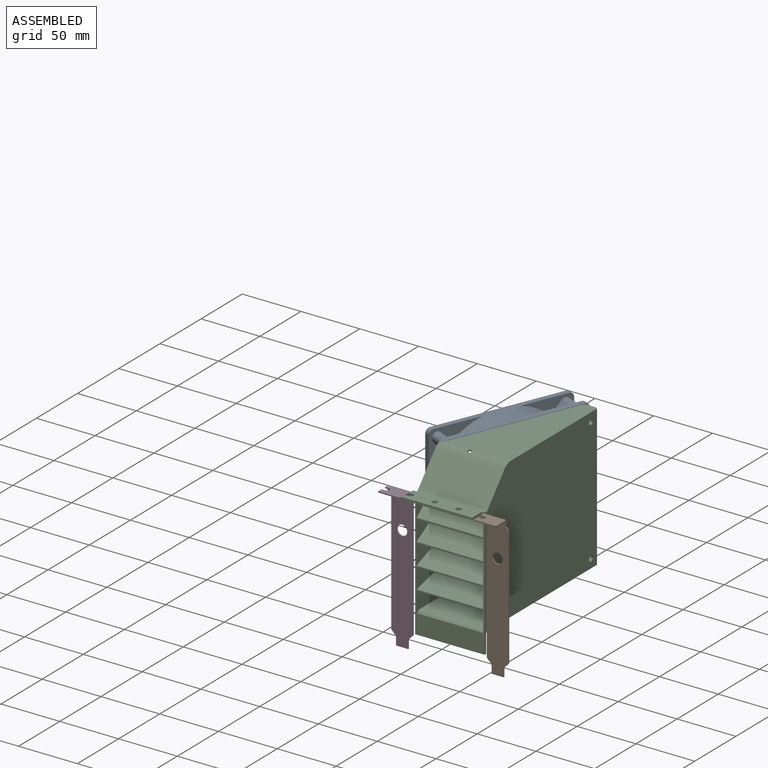
[diagram: assembled view]
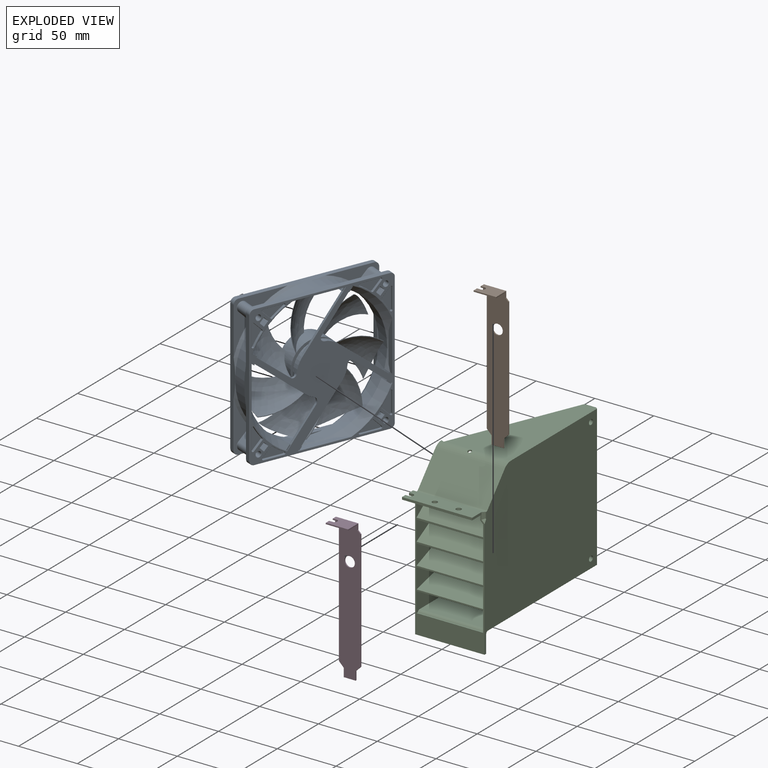
[diagram: exploded view]
GUIDED TOUR — MATED ASSEMBLY (Onshape document 17d0eddd383a870faa927adf, AutoMate assembly 17d0eddd383a870faa927adf_020eab806a0623238c3f0a8d_71ed5372d5021d2027545d51_default)

This assembly has 4 components, labeled P0..P3 below (a component is one placed occurrence of a part; the same part can appear more than once), held together by 7 mates. A mate is a constraint between two components; its type names the relative motion it leaves free:
  FASTENED — locks the two components together rigidly (no relative motion),
  PLANAR — leaves sliding in the plane through the listed point (normal = the listed direction) and rotation about that normal free.
Axis/direction vectors are unit vectors and 'through' points are millimeter coordinates, both in the assembly's world frame.

MATES
  1. FASTENED "Fastened 1": P2 <-> P0, direction (-0.923, 0.386, 0.000) through (-53.42, -31.87, -50.99) mm
  2. PLANAR "Planar 5": P1 <-> P2, direction (0.000, 0.000, -1.000) through (9.03, -75.43, 31.51) mm
  3. PLANAR "Planar 4": P2 <-> P1, direction (0.000, -1.000, 0.000) through (-29.53, -69.65, -58.94) mm
  4. PLANAR "Planar 1": P3 <-> P2, direction (0.000, -1.000, 0.000) through (-70.29, -69.65, -27.29) mm
  5. PLANAR "Planar 2": P3 <-> P2, direction (0.000, 0.000, -1.000) through (-72.24, -75.43, 31.51) mm
  6. PLANAR "Planar 3": P2 <-> P3, direction (-1.000, 0.000, 0.000) through (-59.05, -52.90, -5.53) mm
  7. PLANAR "Planar 6": P2 <-> P1, direction (1.000, 0.000, 0.000) through (0.00, 0.00, 0.00) mm

ASSEMBLY ORDER
  1. P2 — the base component [order verified]
  2. P0 [order verified]
  3. P3 [order verified]
  4. P1 [order verified]
Order-tag legend:
  [order verified] — this step's position reverses a verified removal order: the component was checked to insert without passing through the ones already placed.

Of the 4 components, 2 carry the full construction recipe — the FeatureScript program that regenerates the part's solid from scratch; the rest are supplied as boundary geometry only.
Each toured component is shown spotlighted twice — in the assembled view, then in the exploded view, where a leader line traces a displaced component back to its assembled socket (saturated green if recipe-attached, orange if geometry-only; every other component desaturated gray) — followed by its recipe or geometry summary and the mates that hold it.
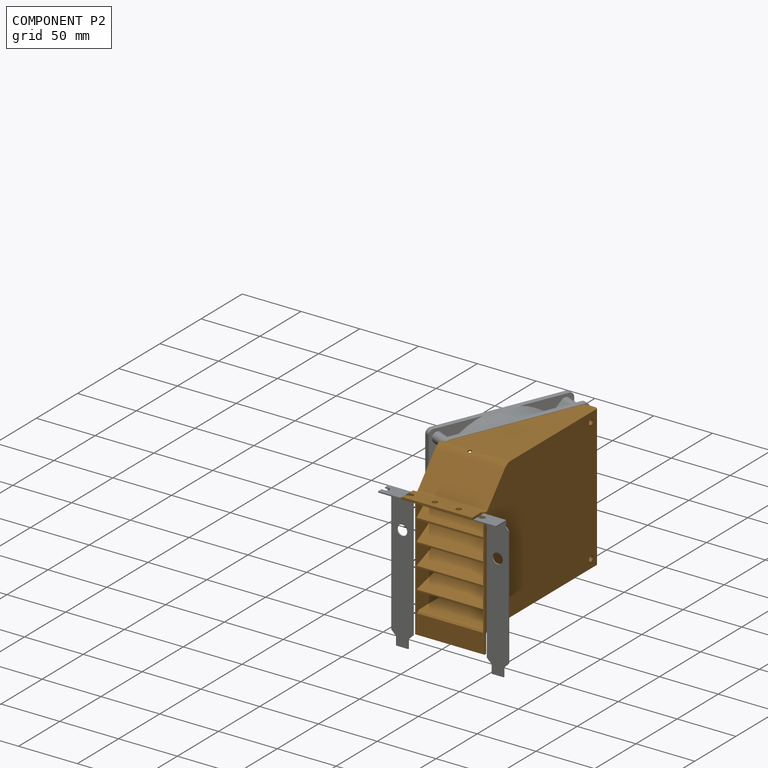
[diagram: component P2 — assembled]
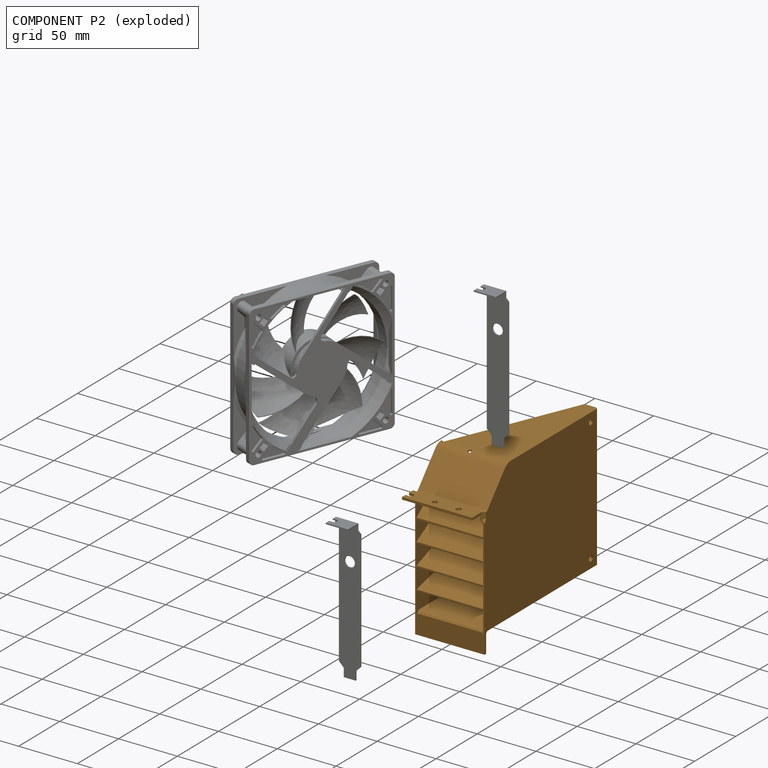
[diagram: component P2 — exploded]
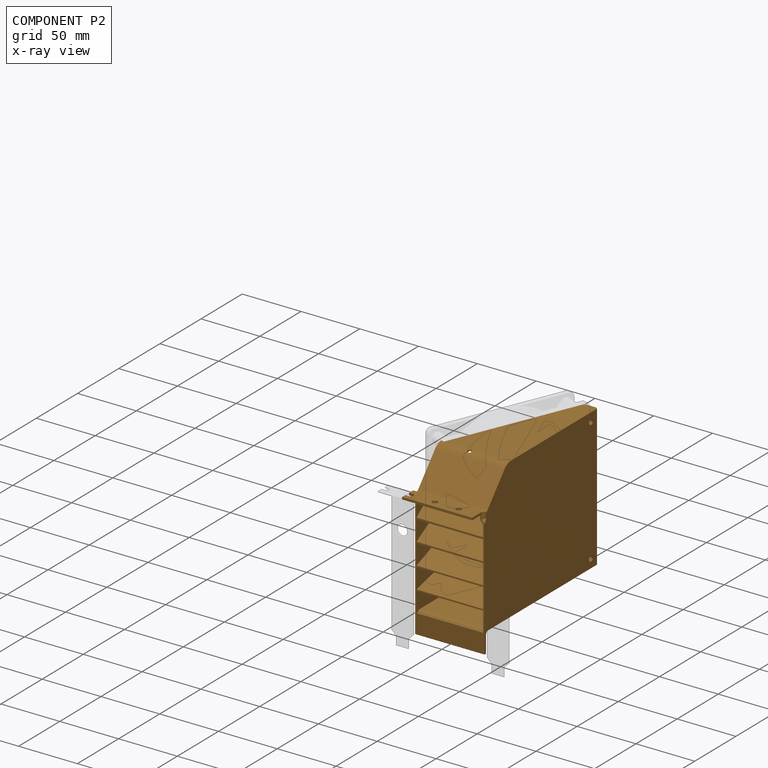
[diagram: component P2 — x-ray view]
COMPONENT P2 — geometry summary (no construction recipe available for this part):
  bounding box: 153.3 x 137.3 x 64.6 mm
  B-rep topology: 1 solid, 134 faces, 790 edges
  volume: 53734 mm^3 (4% of its bounding box)
Held by: FASTENED mate "Fastened 1" to P0; PLANAR mate "Planar 5" to P1; PLANAR mate "Planar 4" to P1; PLANAR mate "Planar 1" to P3; PLANAR mate "Planar 2" to P3; PLANAR mate "Planar 3" to P3; PLANAR mate "Planar 6" to P1.
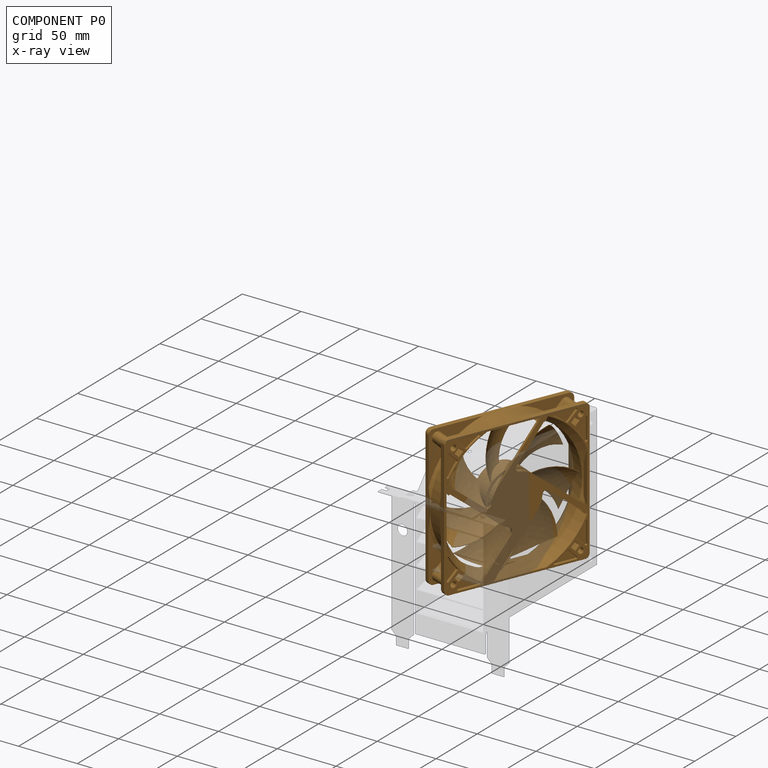
[diagram: component P0 — x-ray view]
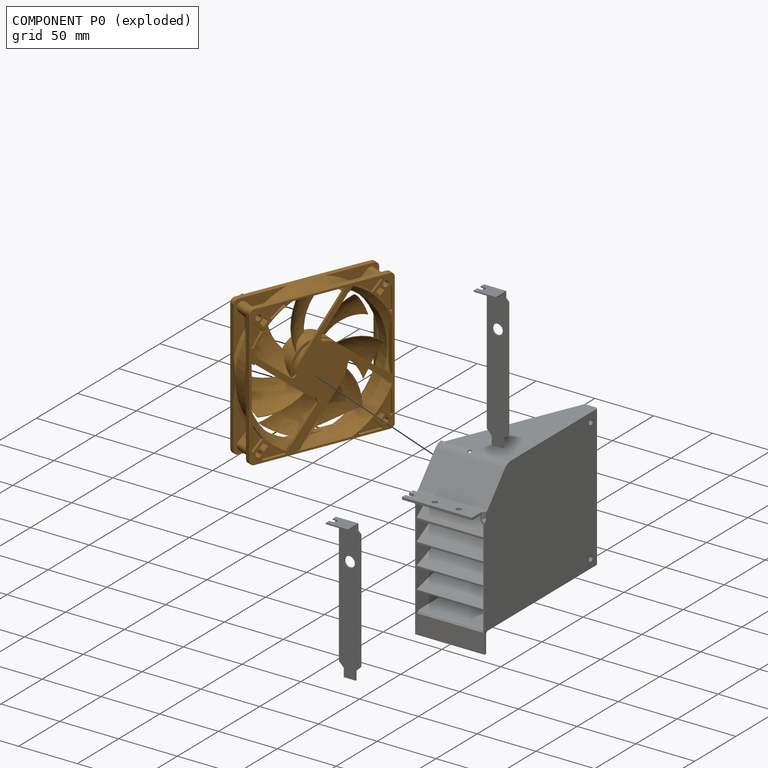
[diagram: component P0 — exploded]
COMPONENT P0 — geometry summary (no construction recipe available for this part):
  bounding box: 130.9 x 130.9 x 25.3 mm
  B-rep topology: 1 solid, 689 faces, 3374 edges
  volume: 77877 mm^3 (18% of its bounding box)
Held by: FASTENED mate "Fastened 1" to P2.
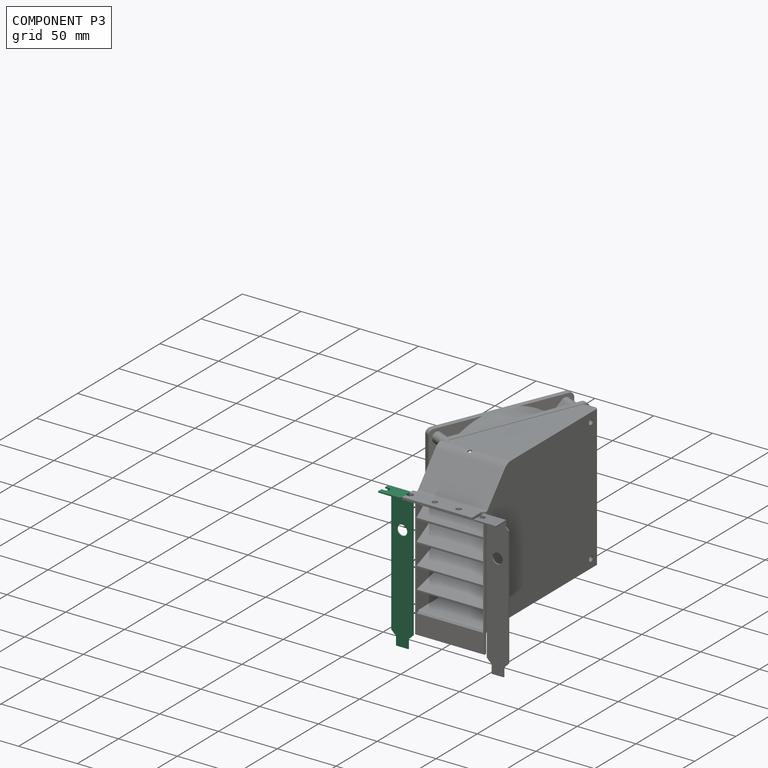
[diagram: component P3 — assembled]
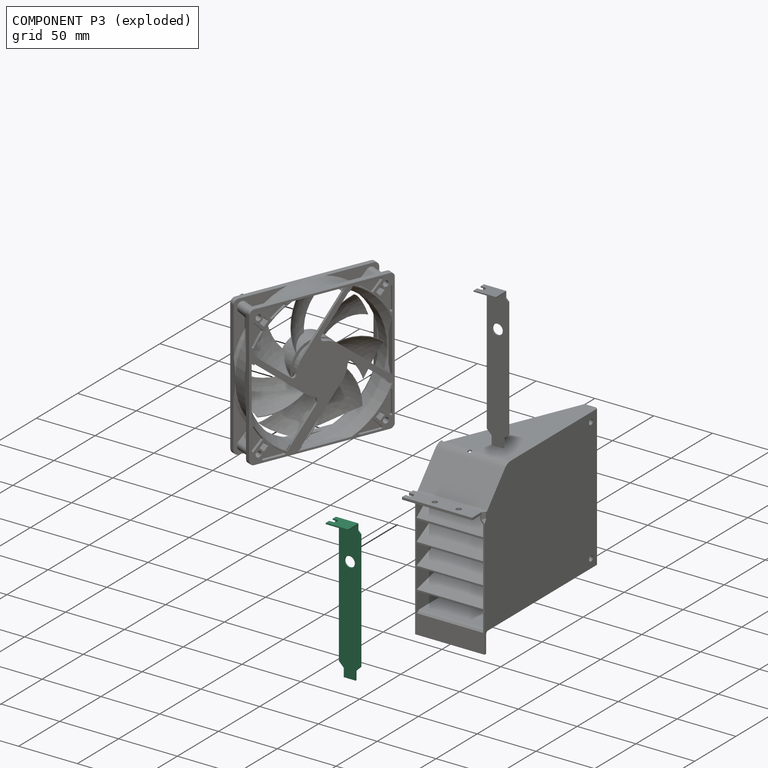
[diagram: component P3 — exploded]
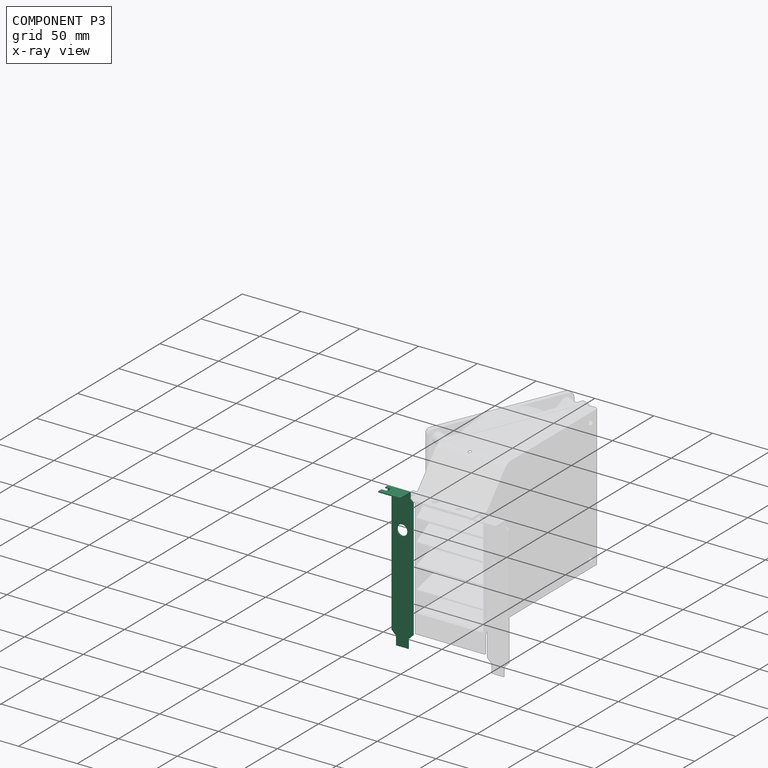
[diagram: component P3 — x-ray view]
COMPONENT P3 — same part as P1 (CADFS 00989363); its construction recipe is shown at P1.
Held by: PLANAR mate "Planar 1" to P2; PLANAR mate "Planar 2" to P2; PLANAR mate "Planar 3" to P2.
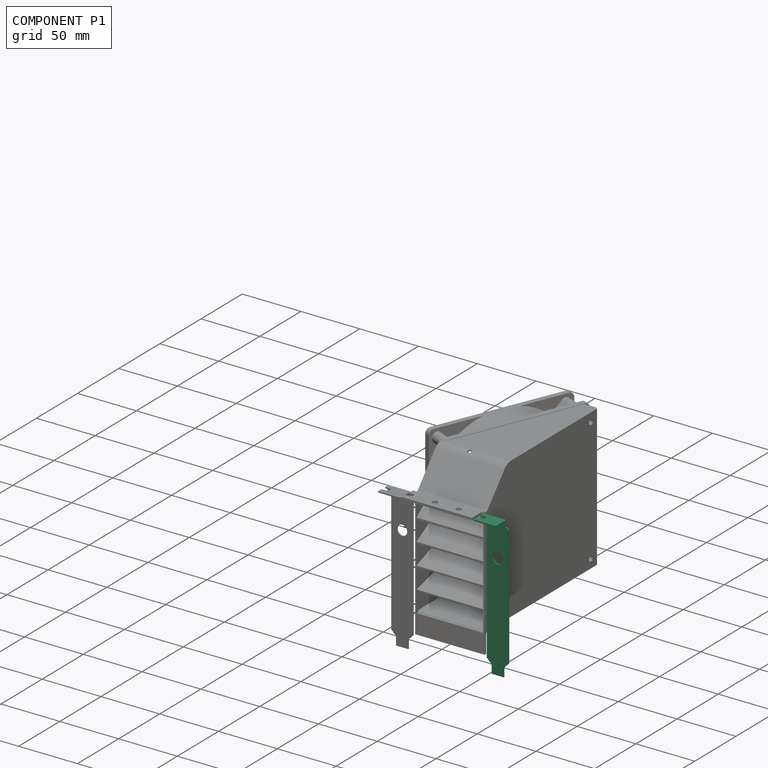
[diagram: component P1 — assembled]
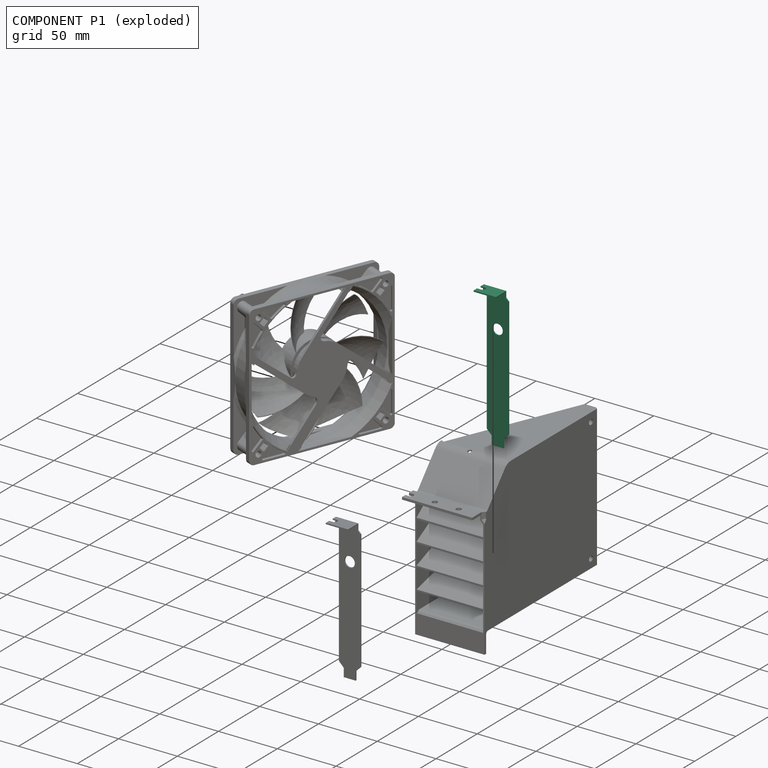
[diagram: component P1 — exploded]
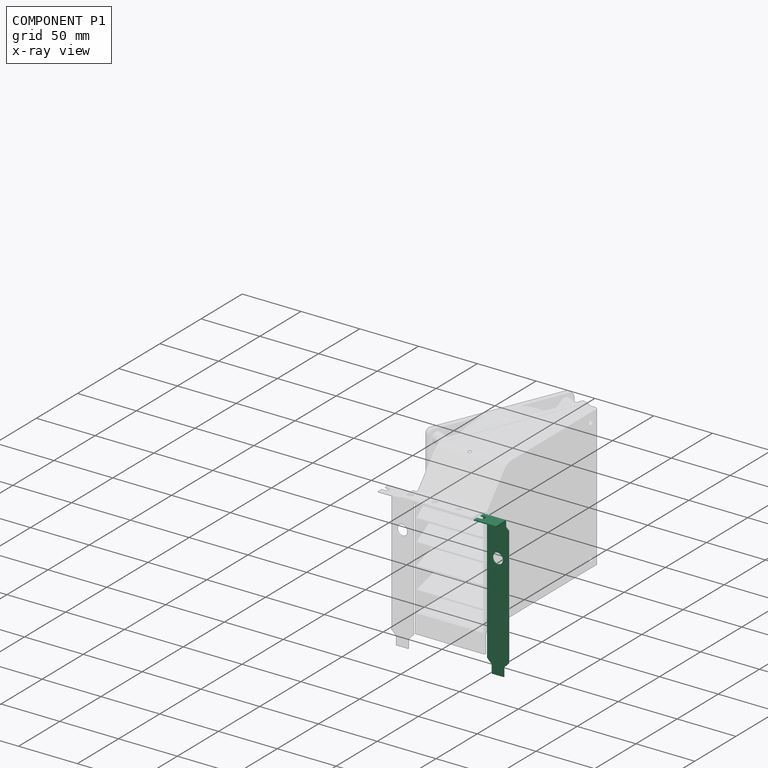
[diagram: component P1 — x-ray view]
COMPONENT P1 — recipe-attached (CADFS 00989363, mesh-verified: the recipe's output STEP matches this component's geometry to below the mesh-comparison resolution (tessellation chordal tolerance ~0.185 mm)).
Held by: PLANAR mate "Planar 5" to P2; PLANAR mate "Planar 4" to P2; PLANAR mate "Planar 6" to P2.
Construction recipe (FeatureScript — the CAD program that rebuilds this solid; sketch coordinates are in the units given by the * unit suffixes, e.g. mm):

FeatureScript 1511;
import(path : "onshape/std/geometry.fs", version : "1511.0");
import(path : "onshape/std/common.fs", version : "1511.0");
const mm = millimeter;
const VERTEX = EntityType.VERTEX;
const EDGE = EntityType.EDGE;
const FACE = EntityType.FACE;
const BODY = EntityType.BODY;
function v(x, y){return vector(x, y);}
function OD(order){return orderDisambiguation(order);}
function OSD(set){return originalSetDisambiguation(set);}
function TD(topology){return topologyDisambiguation(topology);}
function TDD(query){return trueDependencyDisambiguation(query);}
function sQuery(a, b, c) {return sketchEntityQuery(a, b, c);}

annotation { "Feature Type Name" : "Feature", "Feature Type Description" : "" }
export const myFeature = defineFeature(function(context is Context, id is Id, definition is map)
    precondition{}
    {
        {
            assignVariable(context, id + "F0", {"name" : "BracketThickness", "anyValue" : 1 * mm});
        }
        {
            var Q0;
            Q0=qCreatedBy(makeId("Front.planeOp"),FACE);
            var sketch = newSketch(context, id + "F1", { "sketchPlane" : qUnion([Q0])});
            skLineSegment(sketch, "E0", {"start": v(-5.1, 0) * mm, "end": v(5.1, 0) * mm});
            skLineSegment(sketch, "E1", {"start": v(-5.1, 0) * mm, "end": v(-5.1, 7.27) * mm});
            skLineSegment(sketch, "E2", {"start": v(5.1, 0) * mm, "end": v(5.1, 7.27) * mm});
            skLineSegment(sketch, "E3", {"start": v(5.1, 7.27) * mm, "end": v(-5.1, 7.27) * mm, "construction": true});
            skLineSegment(sketch, "E4", {"start": v(-5.1, 7.27) * mm, "end": v(-9.21, 11.38) * mm});
            skLineSegment(sketch, "E5", {"start": v(-9.21, 11.38) * mm, "end": v(-9.21, 113.93) * mm});
            skLineSegment(sketch, "E6", {"start": v(5.1, 7.27) * mm, "end": v(9.2, 11.38) * mm});
            skLineSegment(sketch, "E7", {"start": v(9.2, 11.38) * mm, "end": v(9.2, 113.54) * mm});
            skLineSegment(sketch, "E8", {"start": v(9.21, 113.54) * mm, "end": v(6.67, 116.08) * mm});
            skLineSegment(sketch, "E9", {"start": v(6.67, 116.08) * mm, "end": v(6.67, 120.02) * mm});
            skLineSegment(sketch, "E10", {"start": v(6.67, 120.02) * mm, "end": v(-12.38, 120.02) * mm, "construction": true});
            skLineSegment(sketch, "E11", {"start": v(-12.38, 120.02) * mm, "end": v(-12.38, 117.1) * mm});
            skLineSegment(sketch, "E12", {"start": v(-12.38, 117.1) * mm, "end": v(-9.21, 113.93) * mm});
            skLineSegment(sketch, "E13", {"start": v(-9.21, 11.38) * mm, "end": v(9.2, 11.38) * mm, "construction": true});
            skLineSegment(sketch, "E14", {"start": v(-12.38, 120.02) * mm, "end": v(-12.38, 121.02) * mm});
            skLineSegment(sketch, "E15", {"start": v(-12.38, 121.02) * mm, "end": v(6.67, 121.02) * mm});
            skLineSegment(sketch, "E16", {"start": v(6.67, 121.02) * mm, "end": v(6.67, 120.02) * mm});
            skCircle(sketch, "E17", {"center": v(0, 89.94) * mm, "radius": 4.38 * mm});
            skSolve(sketch);
        }
        {
            var Q0;
            Q0=makeQuery(id+"F1.imprint","IMPRINT",FACE,{"disambiguationData":[TD([[makeQuery(id+"F1.imprint","IMPRINT",EDGE,{"derivedFrom":sQuery(id+"F1.wireOp",EDGE,"E0")}),1.0]])]});
            extrude(context, id + "F2", {"entities" : qUnion([Q0]), "oppositeDirection" : true, "depth" : getVariable(context, 'BracketThickness')});
        }
        {
            var Q0;
            Q0=makeQuery(id+"F2.opExtrude","SWEPT_FACE",FACE,{"disambiguationData":[OSD([sQuery(id+"F1.wireOp",EDGE,"E15")])]});
            var sketch = newSketch(context, id + "F3", { "sketchPlane" : qUnion([Q0])});
            skLineSegment(sketch, "E18.bottom", {"start": v(-12.38, 0) * mm, "end": v(6.67, 0) * mm});
            skLineSegment(sketch, "E18.top", {"start": v(-12.38, -11.43) * mm, "end": v(6.67, -11.43) * mm});
            skLineSegment(sketch, "E18.left", {"start": v(-12.38, 0) * mm, "end": v(-12.38, -11.43) * mm});
            skLineSegment(sketch, "E18.right", {"start": v(6.67, 0) * mm, "end": v(6.67, -11.43) * mm});
            skLineSegment(sketch, "E19", {"start": v(-12.38, -2.87) * mm, "end": v(-9.2, -2.87) * mm});
            skLineSegment(sketch, "E20", {"start": v(-9.2, -2.87) * mm, "end": v(-9.2, -7.3) * mm, "construction": true});
            skLineSegment(sketch, "E21", {"start": v(-9.2, -7.3) * mm, "end": v(-12.38, -7.3) * mm});
            skArc(sketch, "E22", {"start": v(-9.2, -2.87) * mm, "mid": v(-7, -5.08) * mm, "end": v(-9.2, -7.3) * mm});
            skSolve(sketch);
        }
        {
            var Q0;
            {var subQ1=sQuery(id+"F3.wireOp",EDGE,"E18.bottom");Q0=makeQuery(id+"F3.imprint","IMPRINT",FACE,{"disambiguationData":[TD([[makeQuery(id+"F3.imprint","IMPRINT",EDGE,{"derivedFrom":subQ1}),-1.0]])]});}
            extrude(context, id + "F4", {"entities" : qUnion([Q0]), "operationType" : NewBodyOperationType.ADD, "oppositeDirection" : true, "depth" : getVariable(context, 'BracketThickness')});
        }
    });
PROVENANCE & LICENSES
Assembly (occurrences, transforms, mates, per-part STEP geometry): AutoMate dataset, Zenodo record 7776208, CC0.
Construction recipes: CADFS (HuggingFace VladPyatov/CADFS, CC-BY-4.0, layered over the ABC dataset), FeatureScript reconstruction programs keyed by ABC model id.
Join: ABC meta listings map ABC model id -> Onshape documentId; within a shared document, parts are matched by geometric signature (bounding-box dims + volume at 0.1% relative tolerance, exact B-rep face/solid counts).
Verification: 2 of this assembly's 4 components carry a recipe attachment, and every attachment is mesh-verified: the CADFS STEP and the AutoMate member STEP were compared as meshes in their shared local frame (symmetric sampled-point-to-mesh distance); worst across the 2 attachments: below the mesh-comparison resolution (tessellation chordal tolerance ~0.185 mm) on a 124 mm part.
Renders: orthographic iso camera (az 35 / el 25); the floor grid conveys scale (grid pitch printed in each image; no ruler). In the exploded view each component is displaced by its stored offset vector: the offsets alone carry the explosion direction (mate normal/axis signs are not orientation cues and do not encode it), and separation distances are assigned per mate-chain, not proportionally to assembly-order depth.
